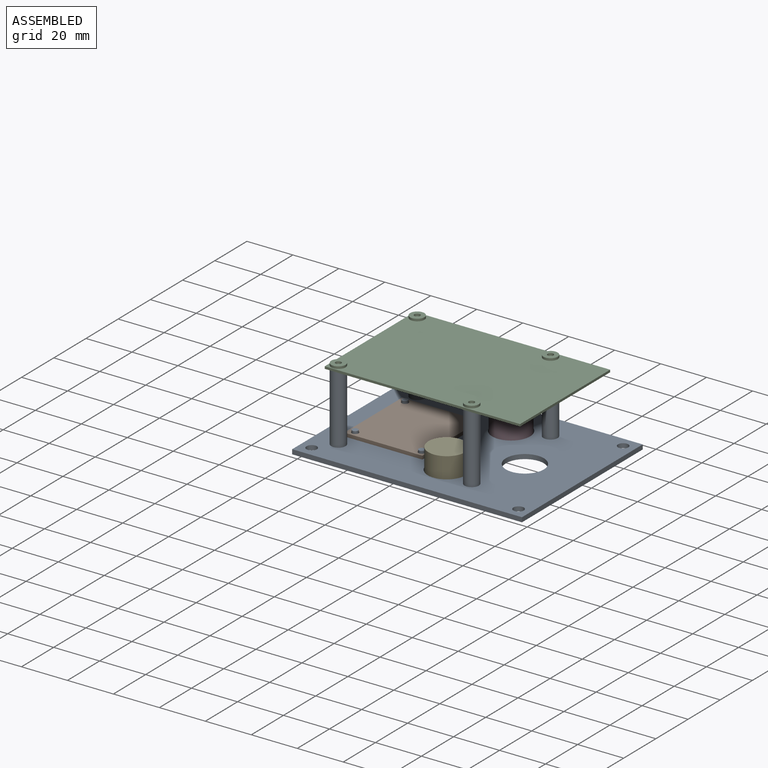
[diagram: assembled view]
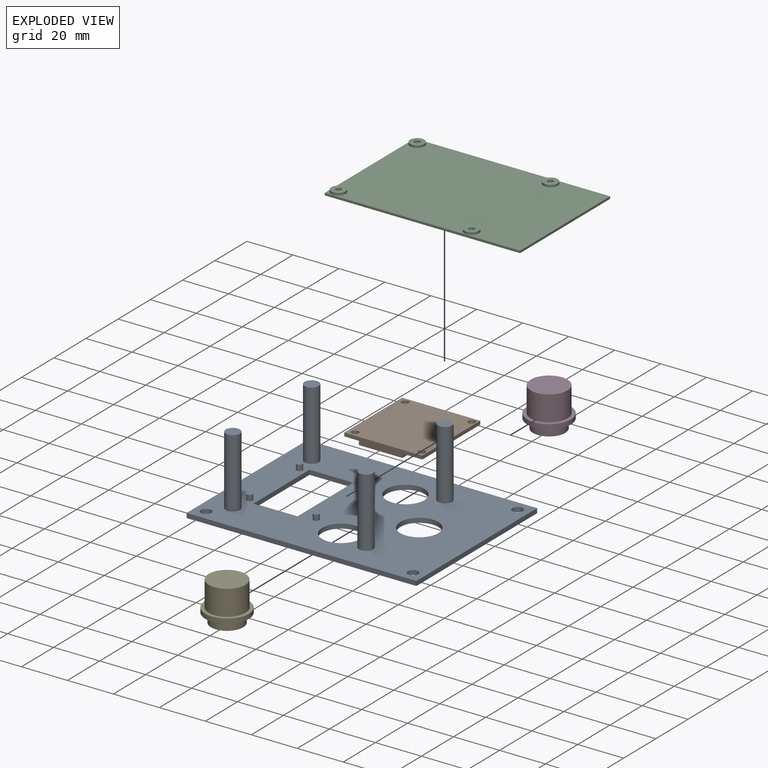
[diagram: exploded view]
GUIDED TOUR — FREECAD ASSEMBLY "Board"

This assembly has 5 components, labeled P0..P4 below (a component is one placed body or linked part; the same part can appear more than once), held together by 0 modeled joints plus 4 derived contact edges. A joint is a constraint between two components; its type names the relative motion it leaves free:
  CONTACT — a derived adjacency edge — the two components touch in the source model (clearance under 2% of the assembly's diagonal); it is measured from the geometry, not a modeled constraint.
Axis/direction vectors are unit vectors and 'through' points are millimeter coordinates, both in the assembly's world frame.

MATES
  1. CONTACT "contact_0_1": P0 <-> P1, contact direction (0.000, 0.000, -1.000) through (-35.00, -17.50, -2.00) mm (derived from contact, not a modeled constraint)
  2. CONTACT "contact_0_2": P0 <-> P2, contact direction (0.000, 0.000, 1.000) through (20.68, -21.90, 30.00) mm (derived from contact, not a modeled constraint)
  3. CONTACT "contact_0_3": P0 <-> P3, contact direction (0.000, 1.000, 0.000) through (11.22, 25.22, -2.00) mm (derived from contact, not a modeled constraint)
  4. CONTACT "contact_0_4": P0 <-> P4, contact direction (0.000, -1.000, 0.000) through (11.22, -25.22, -2.00) mm (derived from contact, not a modeled constraint)

ASSEMBLY ORDER
  1. P1 — the base component [order verified]
  2. P0 [order verified]
  3. P4 [order verified]
  4. P3 [order verified]
  5. P2 [order verified]
Order-tag legend:
  [order verified] — this step's position reverses a verified removal order: the component was checked to insert without passing through the ones already placed.

Of the 5 components, 5 carry a construction recipe — the FreeCAD feature program (sketches with constraints, then the solid features that consume them) that regenerates the part from scratch, quoted from this document or from the linked companion document it references; the rest are supplied as boundary geometry only. The tour below walks the components in assembly order: each is shown spotlighted twice — in the assembled view, then in the exploded view, where a leader line traces a displaced component back to its assembled socket (components that stay in place when exploded have no leader line; saturated green if recipe-attached, orange if geometry-only; every other component desaturated gray) — followed by its recipe or geometry summary and the mates that hold it.
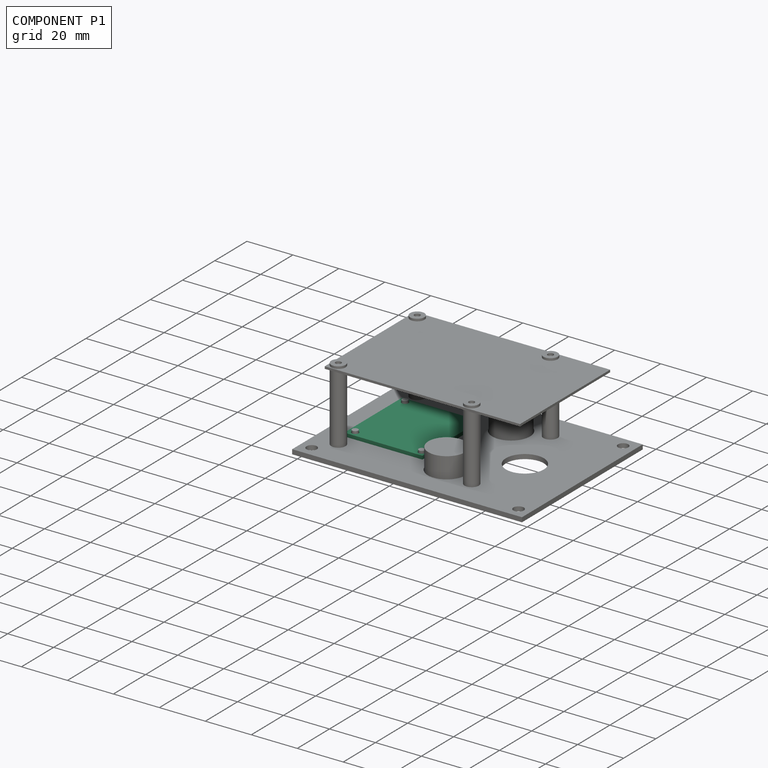
[diagram: component P1 — assembled]
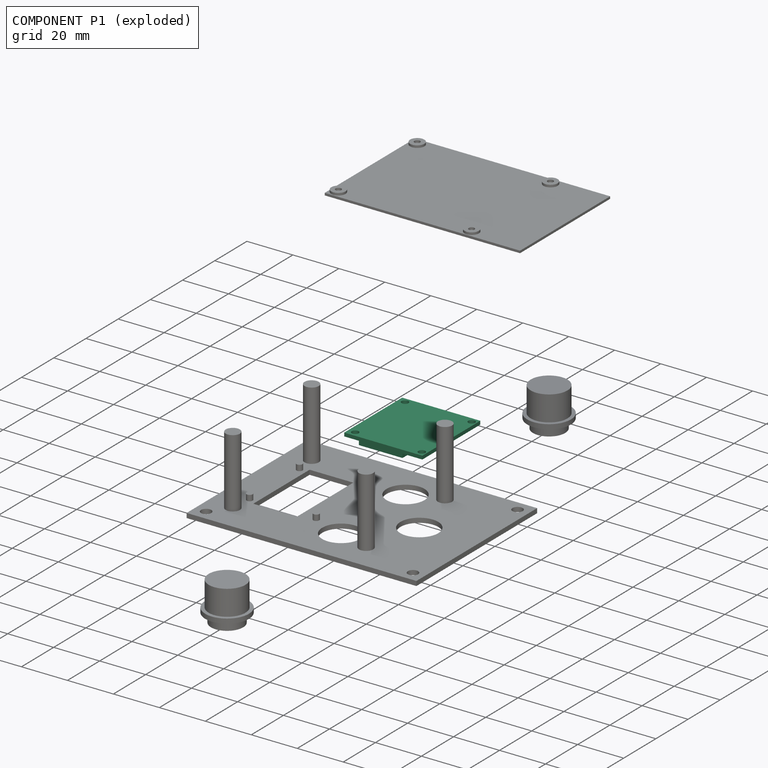
[diagram: component P1 — exploded]
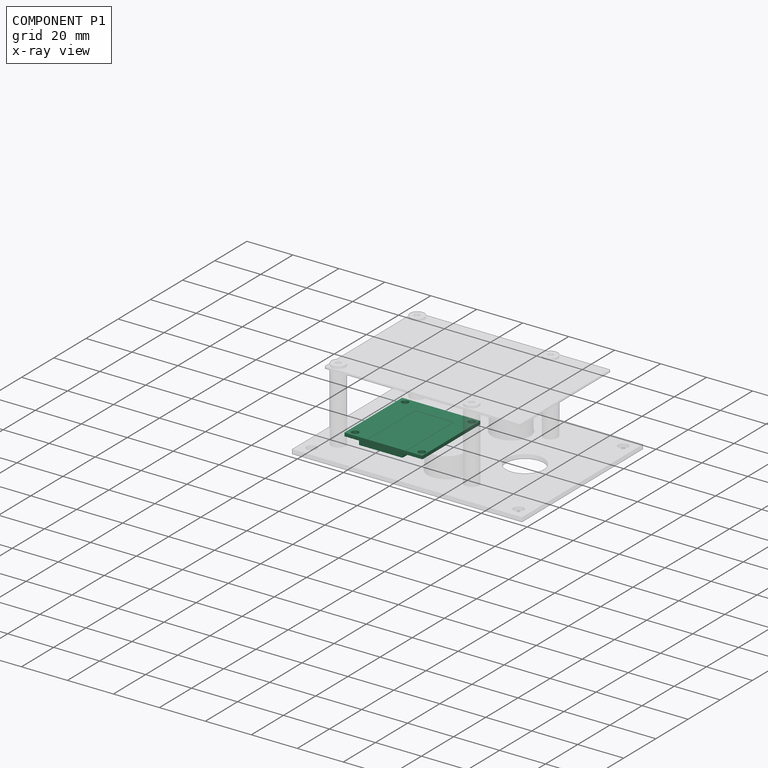
[diagram: component P1 — x-ray view]
COMPONENT P1 — recipe-attached ("LCD-board", modeled in this document).
Held by: resting contact with P0 (derived edge).
Construction recipe (the document's own serialized feature program — sketch geometry with constraints, then the solid features built on it; lengths are millimeters unless a unit is written):

FEATURE [Sketcher::SketchObject] Sketch002  label="LCD-Board"
  MapMode = 5
  Support = -> [XY_Plane001]
  sketch-geometry (8):
    g0: LineSegment StartX=-18 StartY=17 StartZ=0 EndX=18 EndY=17 EndZ=0
    g1: LineSegment StartX=18 StartY=17 StartZ=0 EndX=18 EndY=-17 EndZ=0
    g2: LineSegment StartX=18 StartY=-17 StartZ=0 EndX=-18 EndY=-17 EndZ=0
    g3: LineSegment StartX=-18 StartY=-17 StartZ=0 EndX=-18 EndY=17 EndZ=0
    g4: Circle CenterX=-15.5 CenterY=14 CenterZ=0 NormalX=0 NormalY=0 NormalZ=1 AngleXU=0 Radius=1.5
    g5: Circle CenterX=15.5 CenterY=14 CenterZ=0 NormalX=0 NormalY=0 NormalZ=1 AngleXU=0 Radius=1.5
    g6: Circle CenterX=-15.5 CenterY=-15 CenterZ=0 NormalX=0 NormalY=0 NormalZ=1 AngleXU=0 Radius=1.5
    g7: Circle CenterX=15.5 CenterY=-15 CenterZ=0 NormalX=0 NormalY=0 NormalZ=1 AngleXU=0 Radius=1.5
  constraints (21):
    c: Coincident(g0,g1)
    c: Coincident(g1,g2)
    c: Coincident(g2,g3)
    c: Coincident(g3,g0)
    c: Horizontal(g2)
    c: Vertical(g1)
    c: Symmetric(g0,g0,g-2)
    c: Symmetric(g0,g2,g-1)
    c: DistanceX(g0,g0) = 36
    c: DistanceY(g3,g3) = 34
    c: DistanceX(g0,g4) = 2.5
    c: DistanceY(g4,g0) = 3
    c: Radius(g4) = 1.5
    c: Radius(g5) = 1.5
    c: Symmetric(g4,g5,g-2)
    c: Radius(g6) = 1.5
    c: DistanceY(g6,g4) = 29
    c: Vertical(g6,g4)
    c: Radius(g7) = 1.5
    c: Vertical(g7,g5)
    c: Horizontal(g6,g7)
FEATURE [PartDesign::Pad] Pad  label="LCD-Board-body"
  Length = 1.5
  Length2 = 100
  Profile = -> Sketch002
  Type = 0
FEATURE [Sketcher::SketchObject] Sketch007  label="LCD-Screen"
  ExternalGeometry = -> [Sketch002]
  MapMode = 5
  Placement = pos=(0,0,0) rot=(1,0,0;3.14159rad)
  Support = -> [Pad]
  sketch-geometry (4):
    g0: LineSegment StartX=-17.5 StartY=8 StartZ=0 EndX=17.5 EndY=8 EndZ=0
    g1: LineSegment StartX=17.5 StartY=8 StartZ=0 EndX=17.5 EndY=-11 EndZ=0
    g2: LineSegment StartX=17.5 StartY=-11 StartZ=0 EndX=-17.5 EndY=-11 EndZ=0
    g3: LineSegment StartX=-17.5 StartY=-11 StartZ=0 EndX=-17.5 EndY=8 EndZ=0
  constraints (11):
    c: Coincident(g0,g1)
    c: Coincident(g1,g2)
    c: Coincident(g2,g3)
    c: Coincident(g3,g0)
    c: Horizontal(g2)
    c: Vertical(g1)
    c: Vertical(g3)
    c: Symmetric(g0,g0,g-2)
    c: DistanceX(g0,g0) = 35
    c: DistanceY(g1,g1) = 19
    c: DistanceY(g-3,g1) = 6
FEATURE [PartDesign::Pad] Pad005  label="LCD-Screen-body"
  BaseFeature = -> Pad
  Length = 2
  Length2 = 100
  Profile = -> Sketch007
  Type = 0
FEATURE [PartDesign::Body] Body001  label="LCD-board"
  Group = -> [Sketch002,Pad,Sketch007,Pad005]
  Origin = -> Origin001
  Placement = pos=(-24,0,0) rot=(0,0,1;1.5708rad)
  Tip = -> Pad005
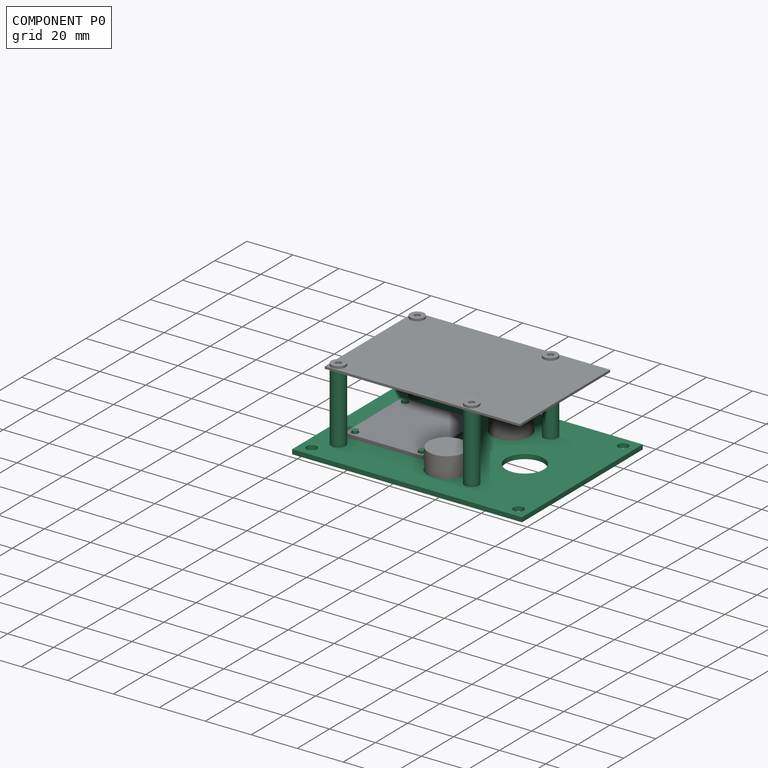
[diagram: component P0 — assembled]
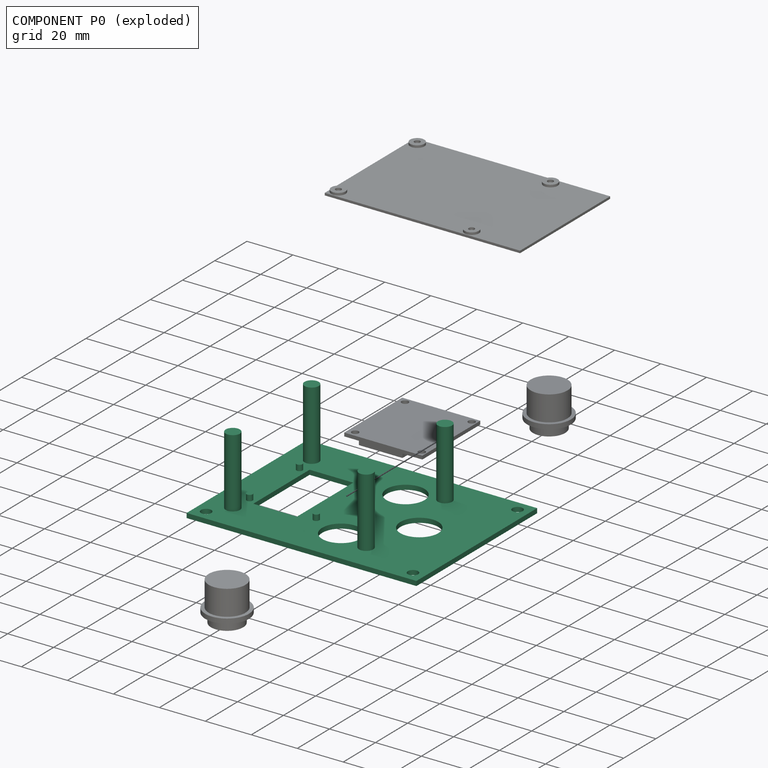
[diagram: component P0 — exploded]
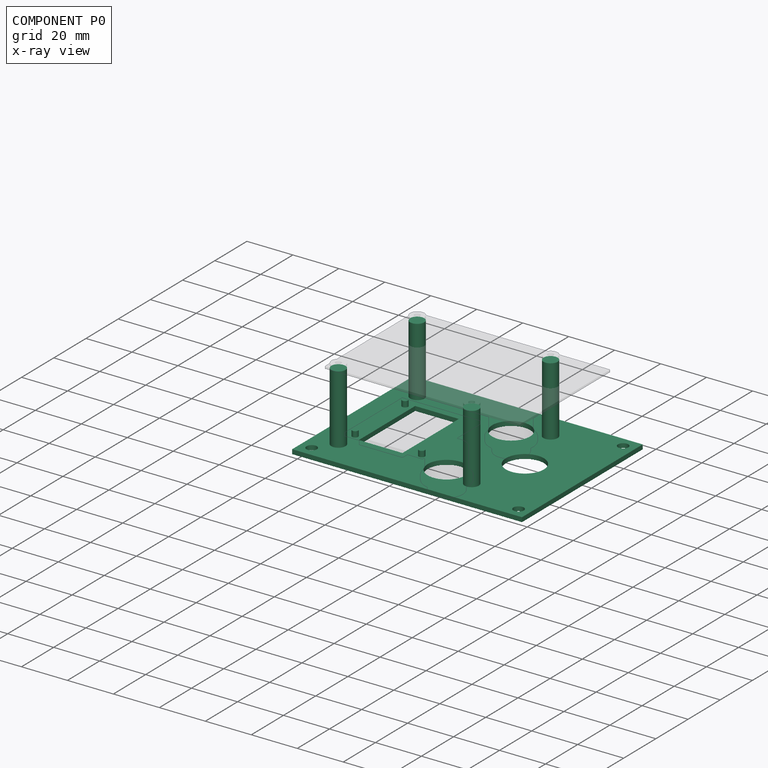
[diagram: component P0 — x-ray view]
COMPONENT P0 — recipe-attached ("Body", modeled in this document).
Held by: resting contact with P1 (derived edge); resting contact with P2 (derived edge); resting contact with P3 (derived edge); resting contact with P4 (derived edge).
Construction recipe (the document's own serialized feature program — sketch geometry with constraints, then the solid features built on it; lengths are millimeters unless a unit is written):

FEATURE [PartDesign::ShapeBinder] ShapeBinder001  label="PI-footprint"
  Support = -> [Pad003]
  TraceSupport = false
FEATURE [PartDesign::ShapeBinder] ShapeBinder  label="LCD-footprint"
  Placement = pos=(-24,0,2) rot=(0,0,1;1.5708rad)
  Support = -> [Pad005]
  TraceSupport = true
FEATURE [Sketcher::SketchObject] Sketch
  ExternalGeometry = -> [ShapeBinder]
  MapMode = 5
  Support = -> [XY_Plane]
  sketch-geometry (15):
    g0: LineSegment StartX=-50 StartY=37.5 StartZ=0 EndX=50 EndY=37.5 EndZ=0
    g1: LineSegment StartX=50 StartY=37.5 StartZ=0 EndX=50 EndY=-37.5 EndZ=0
    g2: LineSegment StartX=50 StartY=-37.5 StartZ=0 EndX=-50 EndY=-37.5 EndZ=0
    g3: LineSegment StartX=-50 StartY=-37.5 StartZ=0 EndX=-50 EndY=37.5 EndZ=0
    g4: LineSegment StartX=-35 StartY=17.5 StartZ=0 EndX=-16 EndY=17.5 EndZ=0
    g5: LineSegment StartX=-16 StartY=17.5 StartZ=0 EndX=-16 EndY=-17.5 EndZ=0
    g6: LineSegment StartX=-16 StartY=-17.5 StartZ=0 EndX=-35 EndY=-17.5 EndZ=0
    g7: LineSegment StartX=-35 StartY=-17.5 StartZ=0 EndX=-35 EndY=17.5 EndZ=0
    g8: Circle CenterX=5 CenterY=20 CenterZ=0 NormalX=0 NormalY=0 NormalZ=1 AngleXU=0 Radius=8.25
    g9: Circle CenterX=5 CenterY=-20 CenterZ=0 NormalX=0 NormalY=0 NormalZ=1 AngleXU=0 Radius=8.25
    g10: Circle CenterX=-45 CenterY=32.5 CenterZ=0 NormalX=0 NormalY=0 NormalZ=1 AngleXU=0 Radius=2.25
    g11: Circle CenterX=-45 CenterY=-32.5 CenterZ=0 NormalX=0 NormalY=0 NormalZ=1 AngleXU=0 Radius=2.25
    g12: Circle CenterX=45 CenterY=32.5 CenterZ=0 NormalX=0 NormalY=0 NormalZ=1 AngleXU=0 Radius=2.25
    g13: Circle CenterX=45 CenterY=-32.5 CenterZ=0 NormalX=0 NormalY=0 NormalZ=1 AngleXU=0 Radius=2.25
    g14: Circle CenterX=25 CenterY=0 CenterZ=0 NormalX=0 NormalY=0 NormalZ=1 AngleXU=0 Radius=8.25
  constraints (37):
    c: Coincident(g0,g1)
    c: Coincident(g1,g2)
    c: Coincident(g2,g3)
    c: Coincident(g3,g0)
    c: Horizontal(g2)
    c: Vertical(g1)
    c: Symmetric(g0,g0,g-2)
    c: Symmetric(g0,g2,g-1)
    c: DistanceX(g0,g0) = 100
    c: DistanceY(g3,g3) = 75
    c: Coincident(g4,g5)
    c: Coincident(g5,g6)
    c: Coincident(g6,g7)
    c: Coincident(g7,g4)
    c: Horizontal(g4)
    c: Horizontal(g6)
    c: Vertical(g5)
    c: Vertical(g7)
    c: Coincident(g5,g-4)
    c: Coincident(g-3,g4)
    c: Radius(g8) = 8.25
    c: DistanceY(g8,g0) = 17.5
    c: Radius(g9) = 8.25
    c: Symmetric(g8,g9,g-1)
    c: DistanceX(g8,g0) = 45
    c: Radius(g10) = 2.25
    c: DistanceX(g0,g10) = 5
    c: DistanceY(g10,g0) = 5
    c: Radius(g11) = 2.25
    c: Symmetric(g10,g11,g-1)
    c: Radius(g12) = 2.25
    c: Symmetric(g10,g12,g-2)
    c: Radius(g13) = 2.25
    c: Symmetric(g12,g13,g-1)
    c: Radius(g14) = 8.25
    c: PointOnObject(g14,g-1)
    c: DistanceX(g14,g0) = 25
FEATURE [PartDesign::Pad] Pad001  label="Base"
  Length = 2
  Length2 = 100
  Profile = -> Sketch
  Type = 0
FEATURE [Sketcher::SketchObject] Sketch008  label="LCD-support"
  ExternalGeometry = -> [ShapeBinder]
  MapMode = 5
  Placement = pos=(0,0,2) rot=(0,0,1;0rad)
  Support = -> [Pad001]
  sketch-geometry (4):
    g0: Circle CenterX=-38 CenterY=15.5 CenterZ=0 NormalX=0 NormalY=0 NormalZ=1 AngleXU=0 Radius=1.3
    g1: Circle CenterX=-9 CenterY=15.5 CenterZ=0 NormalX=0 NormalY=0 NormalZ=1 AngleXU=0 Radius=1.3
    g2: Circle CenterX=-38 CenterY=-15.5 CenterZ=0 NormalX=0 NormalY=0 NormalZ=1 AngleXU=0 Radius=1.3
    g3: Circle CenterX=-9 CenterY=-15.5 CenterZ=0 NormalX=0 NormalY=0 NormalZ=1 AngleXU=0 Radius=1.3
  constraints (8):
    c: Coincident(g0,g-3)
    c: Coincident(g1,g-4)
    c: Coincident(g2,g-6)
    c: Coincident(g3,g-5)
    c: Radius(g0) = 1.3
    c: Radius(g1) = 1.3
    c: Radius(g2) = 1.3
    c: Radius(g3) = 1.3
FEATURE [PartDesign::Pad] Pad006  label="LCD-Support"
  BaseFeature = -> Pad001
  Length = 2.5
  Length2 = 100
  Profile = -> Sketch008
  Type = 0
FEATURE [Sketcher::SketchObject] Sketch009  label="PI-support"
  ExternalGeometry = -> [ShapeBinder001]
  MapMode = 5
  Placement = pos=(0,0,2) rot=(0,0,1;0rad)
  Support = -> [Pad006]
  sketch-geometry (4):
    g0: Circle CenterX=19 CenterY=24.5 CenterZ=0 NormalX=0 NormalY=0 NormalZ=1 AngleXU=0 Radius=3.1
    g1: Circle CenterX=-39 CenterY=24.5 CenterZ=0 NormalX=0 NormalY=0 NormalZ=1 AngleXU=0 Radius=3.1
    g2: Circle CenterX=-39 CenterY=-24.5 CenterZ=0 NormalX=0 NormalY=0 NormalZ=1 AngleXU=0 Radius=3.1
    g3: Circle CenterX=19 CenterY=-24.5 CenterZ=0 NormalX=0 NormalY=0 NormalZ=1 AngleXU=0 Radius=3.1
  constraints (8):
    c: Coincident(g0,g-6)
    c: Coincident(g1,g-3)
    c: Coincident(g2,g-4)
    c: Coincident(g3,g-5)
    c: Radius(g1) = 3.1
    c: Radius(g0) = 3.1
    c: Radius(g2) = 3.1
    c: Radius(g3) = 3.1
FEATURE [PartDesign::Pad] Pad007  label="PI-Support"
  BaseFeature = -> Pad006
  Length = 30
  Length2 = 100
  Profile = -> Sketch009
  Type = 0
FEATURE [PartDesign::Body] Body
  Group = -> [Sketch,Pad001,ShapeBinder001,ShapeBinder,Sketch008,Sketch009,Pad006,Pad007]
  Origin = -> Origin
  Placement = pos=(0,0,-2) rot=(0,0,1;0rad)
  Tip = -> Pad007
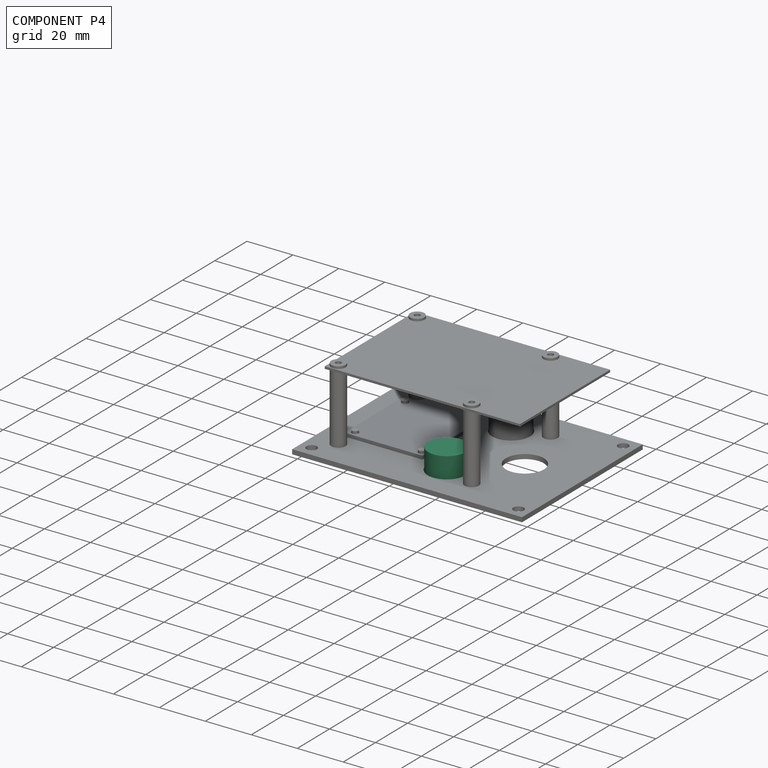
[diagram: component P4 — assembled]
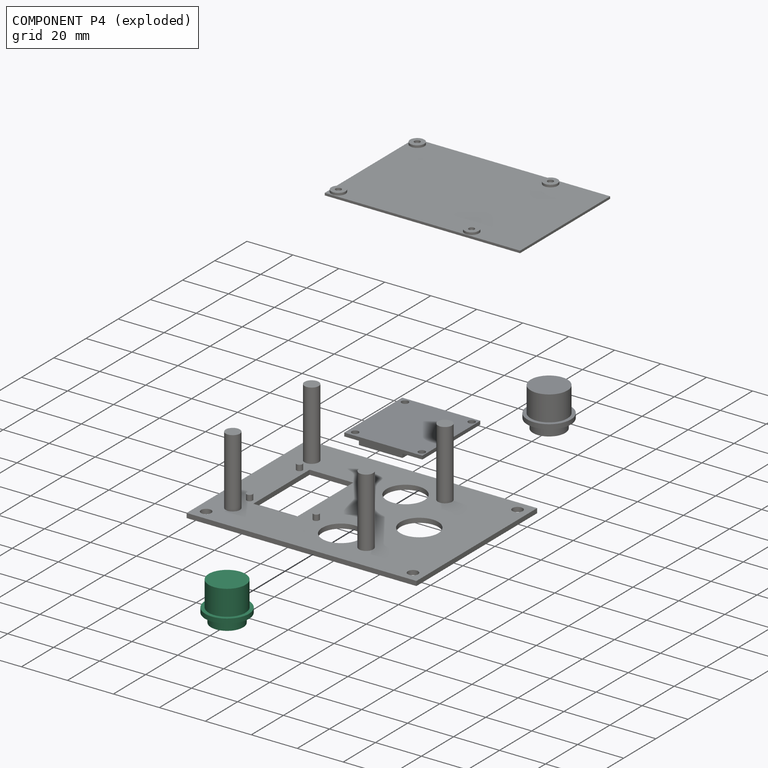
[diagram: component P4 — exploded]
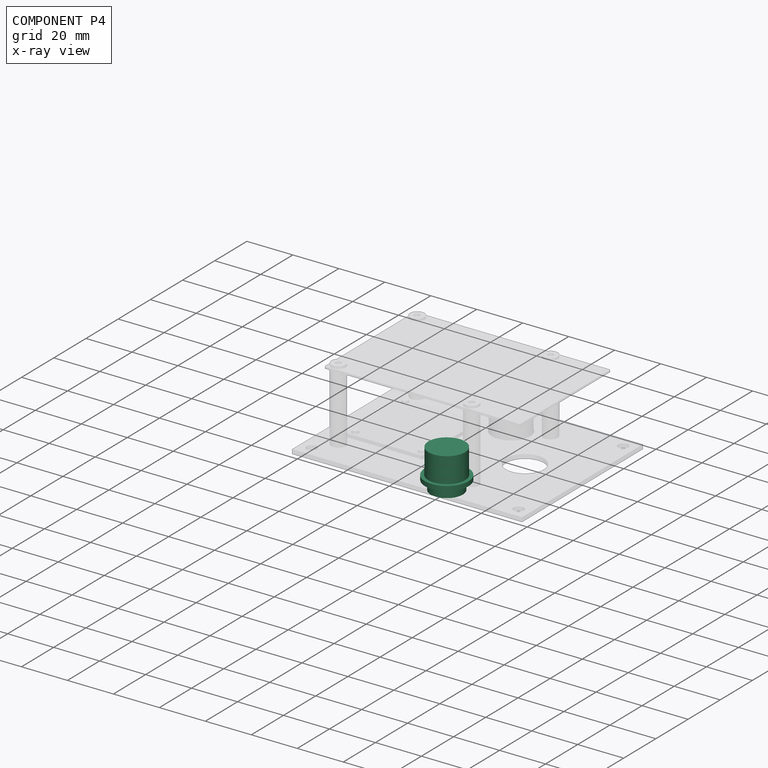
[diagram: component P4 — x-ray view]
COMPONENT P4 — same part as P3; its construction recipe is shown at P3.
Held by: resting contact with P0 (derived edge).
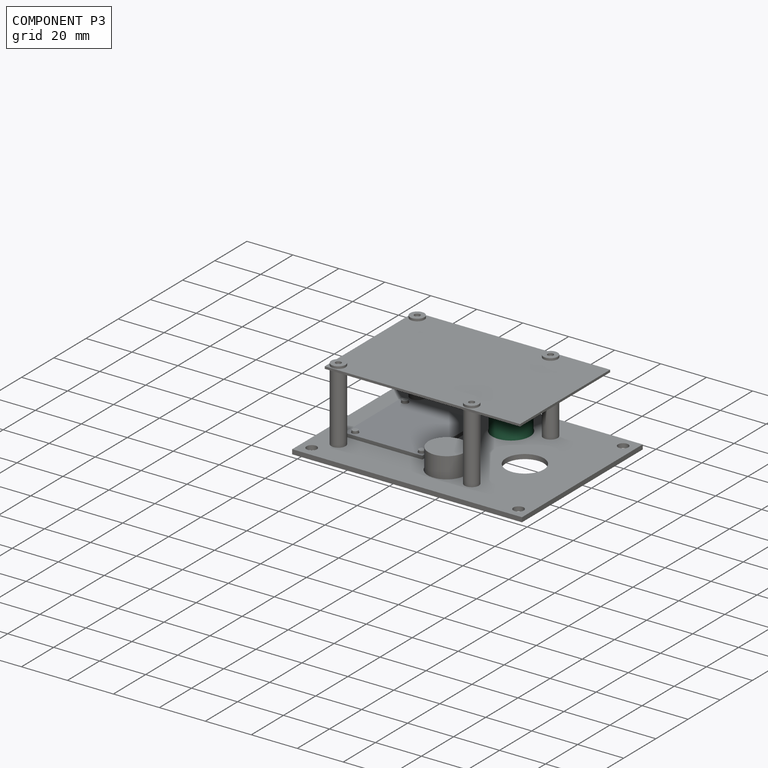
[diagram: component P3 — assembled]
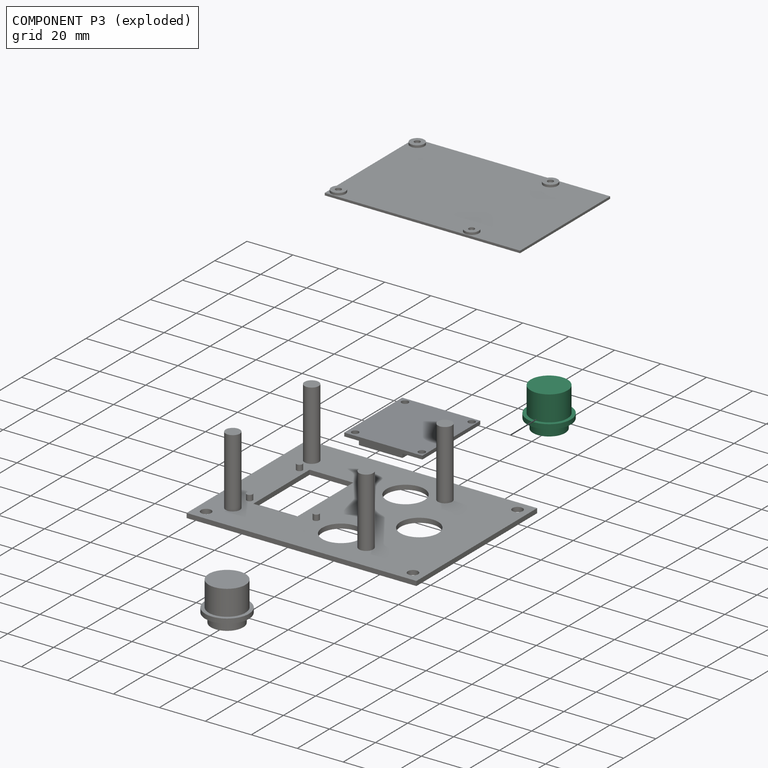
[diagram: component P3 — exploded]
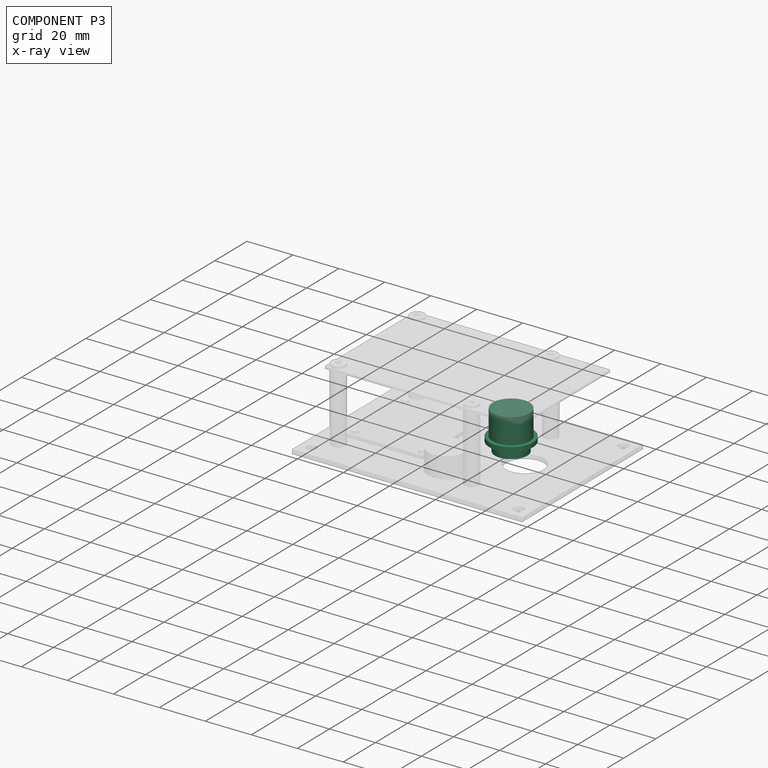
[diagram: component P3 — x-ray view]
COMPONENT P3 — recipe-attached ("Button001", modeled in this document).
Held by: resting contact with P0 (derived edge).
Construction recipe (the document's own serialized feature program — sketch geometry with constraints, then the solid features built on it; lengths are millimeters unless a unit is written):

FEATURE [Sketcher::SketchObject] Sketch010
  MapMode = 5
  Support = -> [XY_Plane003]
  sketch-geometry (1):
    g0: Circle CenterX=0 CenterY=0 CenterZ=0 NormalX=0 NormalY=0 NormalZ=1 AngleXU=0 Radius=9.5
  constraints (2):
    c: Coincident(g0,g-1)
    c: Radius(g0) = 9.5
FEATURE [PartDesign::Pad] Pad008
  Length = 2
  Length2 = 100
  Profile = -> Sketch010
  Type = 0
FEATURE [Sketcher::SketchObject] Sketch011
  MapMode = 5
  Placement = pos=(0,0,2) rot=(0,0,1;0rad)
  Support = -> [Pad008]
  sketch-geometry (1):
    g0: Circle CenterX=0 CenterY=0 CenterZ=0 NormalX=0 NormalY=0 NormalZ=1 AngleXU=0 Radius=7
  constraints (2):
    c: Coincident(g0,g-1)
    c: Radius(g0) = 7
FEATURE [PartDesign::Pad] Pad009
  BaseFeature = -> Pad008
  Length = 4
  Length2 = 100
  Profile = -> Sketch011
  Type = 0
FEATURE [Sketcher::SketchObject] Sketch012
  MapMode = 5
  Placement = pos=(0,0,0) rot=(1,0,0;3.14159rad)
  Support = -> [Pad009]
  sketch-geometry (1):
    g0: Circle CenterX=0 CenterY=0 CenterZ=0 NormalX=0 NormalY=0 NormalZ=1 AngleXU=0 Radius=8
  constraints (2):
    c: Coincident(g0,g-1)
    c: Radius(g0) = 8
FEATURE [PartDesign::Pad] Pad010
  BaseFeature = -> Pad009
  Length = 11
  Length2 = 100
  Profile = -> Sketch012
  Type = 0
FEATURE [PartDesign::Body] Body003  label="Button"
  Group = -> [Sketch010,Pad008,Sketch011,Pad009,Sketch012,Pad010]
  Origin = -> Origin003
  Placement = pos=(25,0,-2) rot=(0,1,0;3.14159rad)
  Tip = -> Pad010
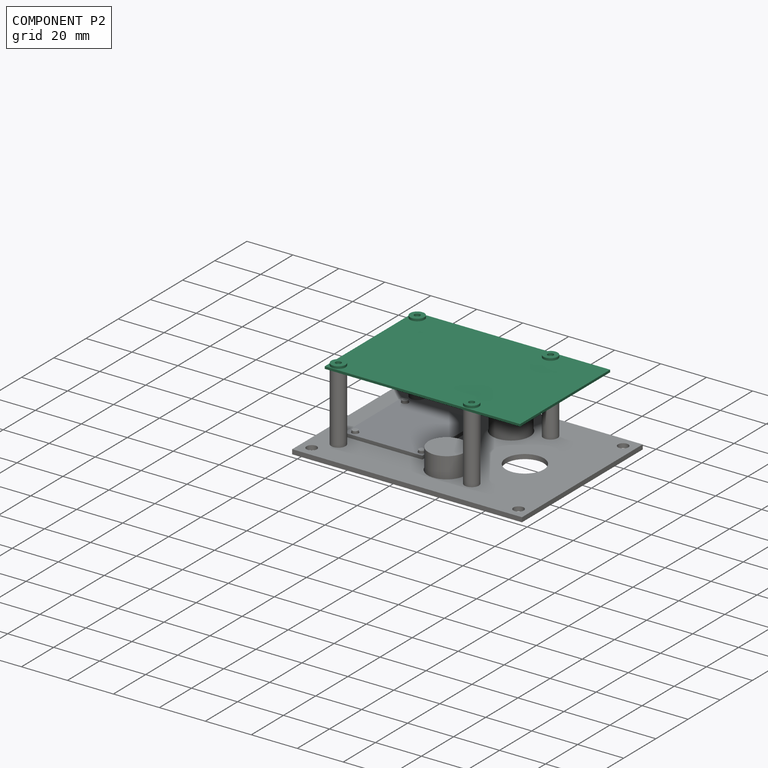
[diagram: component P2 — assembled]
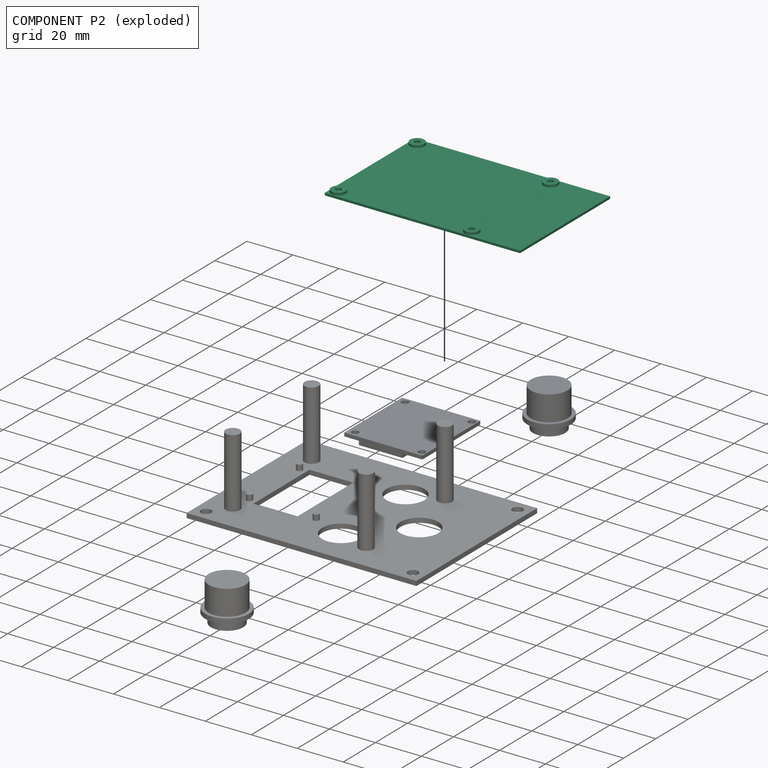
[diagram: component P2 — exploded]
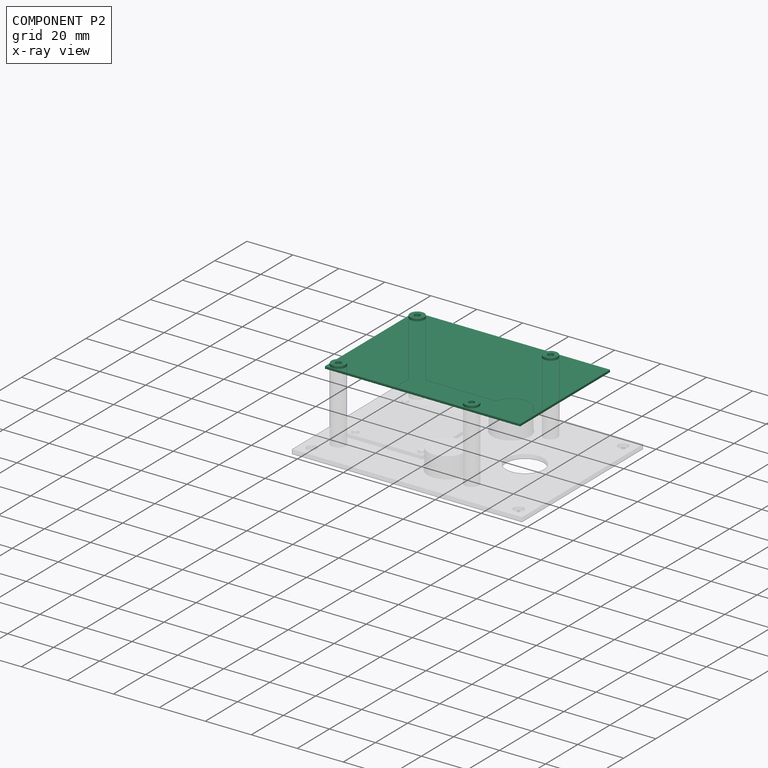
[diagram: component P2 — x-ray view]
COMPONENT P2 — recipe-attached ("PI234", modeled in this document).
Held by: resting contact with P0 (derived edge).
Construction recipe (the document's own serialized feature program — sketch geometry with constraints, then the solid features built on it; lengths are millimeters unless a unit is written):

FEATURE [Sketcher::SketchObject] Sketch003  label="PI-Board"
  MapMode = 5
  sketch-geometry (4):
    g0: LineSegment StartX=-42.5 StartY=28 StartZ=0 EndX=42.5 EndY=28 EndZ=0
    g1: LineSegment StartX=42.5 StartY=28 StartZ=0 EndX=42.5 EndY=-28 EndZ=0
    g2: LineSegment StartX=42.5 StartY=-28 StartZ=0 EndX=-42.5 EndY=-28 EndZ=0
    g3: LineSegment StartX=-42.5 StartY=-28 StartZ=0 EndX=-42.5 EndY=28 EndZ=0
  constraints (11):
    c: Coincident(g0,g1)
    c: Coincident(g1,g2)
    c: Coincident(g2,g3)
    c: Coincident(g3,g0)
    c: Horizontal(g0)
    c: Horizontal(g2)
    c: Vertical(g1)
    c: Vertical(g3)
    c: Symmetric(g2,g0,g-1)
    c: DistanceX(g0,g0) = 85
    c: DistanceY(g3,g3) = 56
FEATURE [Sketcher::SketchObject] Sketch004  label="PI-Holes"
  MapMode = 5
  sketch-geometry (8):
    g0: Circle CenterX=-39 CenterY=24.5 CenterZ=0 NormalX=0 NormalY=0 NormalZ=1 AngleXU=0 Radius=1.25
    g1: Circle CenterX=19 CenterY=24.5 CenterZ=0 NormalX=0 NormalY=0 NormalZ=1 AngleXU=0 Radius=1.25
    g2: Circle CenterX=-39 CenterY=-24.5 CenterZ=0 NormalX=0 NormalY=0 NormalZ=1 AngleXU=0 Radius=1.25
    g3: Circle CenterX=19 CenterY=-24.5 CenterZ=0 NormalX=0 NormalY=0 NormalZ=1 AngleXU=0 Radius=1.25
    g4: Circle CenterX=-39 CenterY=24.5 CenterZ=0 NormalX=0 NormalY=0 NormalZ=1 AngleXU=0 Radius=3.1
    g5: Circle CenterX=19 CenterY=24.5 CenterZ=0 NormalX=0 NormalY=0 NormalZ=1 AngleXU=0 Radius=3.1
    g6: Circle CenterX=-39 CenterY=-24.5 CenterZ=0 NormalX=0 NormalY=0 NormalZ=1 AngleXU=0 Radius=3.1
    g7: Circle CenterX=19 CenterY=-24.5 CenterZ=0 NormalX=0 NormalY=0 NormalZ=1 AngleXU=0 Radius=3.1
  constraints (20):
    c: Radius(g0) = 1.25
    c: Radius(g1) = 1.25
    c: DistanceX(g0,g1) = 58
    c: Horizontal(g0,g1)
    c: Radius(g2) = 1.25
    c: Radius(g3) = 1.25
    c: Vertical(g2,g0)
    c: Vertical(g1,g3)
    c: Horizontal(g2,g3)
    c: DistanceY(g2,g0) = 49
    c: Coincident(g4,g0)
    c: Radius(g4) = 3.1
    c: Coincident(g5,g1)
    c: Radius(g5) = 3.1
    c: Coincident(g6,g2)
    c: Radius(g6) = 3.1
    c: Coincident(g7,g3)
    c: Radius(g7) = 3.1
    c: DistanceX(g0,g-1) = 39
    c: DistanceY(g-1,g0) = 24.5
FEATURE [PartDesign::Pad] Pad002  label="PI-Board-body"
  Length = 1
  Length2 = 100
  Profile = -> Sketch003
  Type = 0
FEATURE [PartDesign::Pad] Pad003  label="PI-Holes-body"
  BaseFeature = -> Pad002
  Length = 2
  Length2 = 100
  Profile = -> Sketch004
  Type = 0
FEATURE [PartDesign::Body] Body002  label="PI234"
  Group = -> [Sketch003,Pad002,Sketch004,Pad003]
  Origin = -> Origin002
  Placement = pos=(0,0,30) rot=(0,0,1;0rad)
  Tip = -> Pad003
PROVENANCE & LICENSES
Assembly and component geometry: a FreeCAD (.FCStd) document from a public repository crawl; components, placements and joints were extracted with FreeCAD and each solid tessellated.
Construction recipes: the document's own serialized feature recipes (and, for linked parts, the recipes of companion documents from the same project).
License: as declared in the source repository (recorded in the dataset sidecar).
Joints: native FreeCAD joints and A2plus constraints are mapped to standard mate types; edges marked 'derived from contact' connect touching components and are measured from the geometry, not modeled.
Verification: 5 of this assembly's 5 components carry a construction recipe (5 from this document itself); the rest are geometry-only. Every component's tessellation passed the extraction mesh gates (mesh-volume checksum against the B-rep where available, bounding-box inflation <= 2%).
Renders: orthographic iso camera (az 35 / el 25); the floor grid conveys scale (grid pitch printed in each image; no ruler). In the exploded view each component is displaced by its stored offset vector: the offsets alone carry the explosion direction (mate normal/axis signs are not orientation cues and do not encode it), and separation distances are assigned per mate-chain, not proportionally to assembly-order depth.
